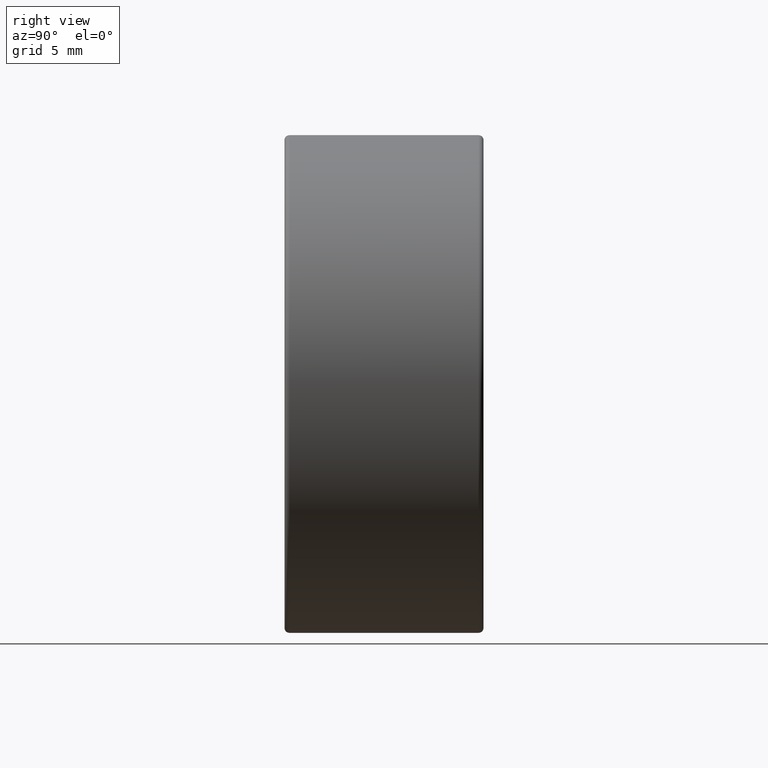
[diagram: clean part render]
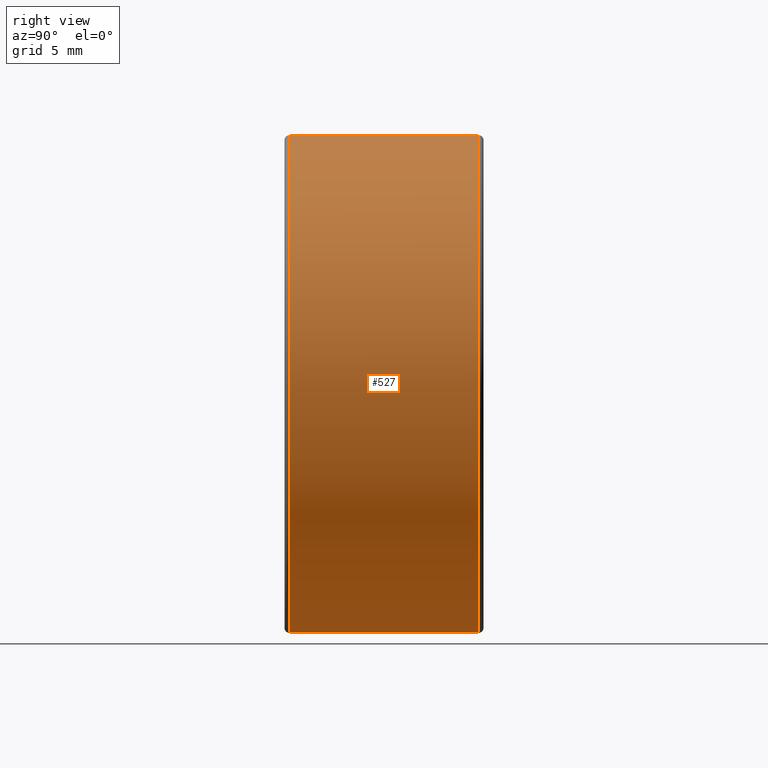
[diagram: same view with one face highlighted and labeled with its STEP entity id]
A machine part, right view. The second image highlights one B-rep face of the part: STEP entity #527.
In plain terms, the highlighted cylindrical surface (partial cylindrical patch) has radius 12.5 mm, axis along (-0, -1, -0).
Its self-contained STEP definition (entity closure, byte-faithful):
#10 = EDGE_CURVE ( 'NONE', #51, #87, #102, .T. ) ;
#16 = CARTESIAN_POINT ( 'NONE',  ( -4.682026255059964726, -6.344975976998274980, 12.50000000000000000 ) ) ;
#26 = CARTESIAN_POINT ( 'NONE',  ( -4.682026255059962949, 3.405024023001725020, 37.50000000000000711 ) ) ;
#37 = CARTESIAN_POINT ( 'NONE',  ( -4.682026255059962949, -6.344975976998274980, 37.50000000000000711 ) ) ;
#51 = VERTEX_POINT ( 'NONE', #37 ) ;
#57 = CARTESIAN_POINT ( 'NONE',  ( -4.682026255059962949, 3.155024023001725020, 12.50000000000000000 ) ) ;
#73 = DIRECTION ( 'NONE',  ( -0.0000000000000000000, -1.000000000000000000, -0.0000000000000000000 ) ) ;
#79 = DIRECTION ( 'NONE',  ( 0.0000000000000000000, 0.0000000000000000000, 1.000000000000000000 ) ) ;
#87 = VERTEX_POINT ( 'NONE', #16 ) ;
#102 = CIRCLE ( 'NONE', #554, 12.50000000000000355 ) ;
#104 = DIRECTION ( 'NONE',  ( -0.0000000000000000000, -1.000000000000000000, -0.0000000000000000000 ) ) ;
#210 = CARTESIAN_POINT ( 'NONE',  ( -4.682026255059964726, 3.155024023001725020, 25.00000000000000000 ) ) ;
#211 = DIRECTION ( 'NONE',  ( -0.0000000000000000000, -1.000000000000000000, -0.0000000000000000000 ) ) ;
#213 = EDGE_CURVE ( 'NONE', #428, #87, #279, .T. ) ;
#219 = LINE ( 'NONE', #26, #589 ) ;
#256 = CYLINDRICAL_SURFACE ( 'NONE', #547, 12.50000000000000000 ) ;
#276 = EDGE_CURVE ( 'NONE', #428, #423, #304, .T. ) ;
#279 = LINE ( 'NONE', #489, #415 ) ;
#296 = EDGE_CURVE ( 'NONE', #423, #51, #219, .T. ) ;
#304 = CIRCLE ( 'NONE', #465, 12.50000000000000355 ) ;
#307 = DIRECTION ( 'NONE',  ( 0.0000000000000000000, 0.0000000000000000000, 1.000000000000000000 ) ) ;
#365 = CARTESIAN_POINT ( 'NONE',  ( -4.682026255059964726, -6.344975976998274980, 25.00000000000000000 ) ) ;
#369 = DIRECTION ( 'NONE',  ( 0.0000000000000000000, 1.000000000000000000, 0.0000000000000000000 ) ) ;
#370 = ORIENTED_EDGE ( 'NONE', *, *, #276, .T. ) ;
#382 = ORIENTED_EDGE ( 'NONE', *, *, #10, .T. ) ;
#391 = CARTESIAN_POINT ( 'NONE',  ( -4.682026255059964726, 3.155024023001725020, 37.50000000000000711 ) ) ;
#402 = DIRECTION ( 'NONE',  ( 0.0000000000000000000, 0.0000000000000000000, -1.000000000000000000 ) ) ;
#415 = VECTOR ( 'NONE', #104, 1000.000000000000000 ) ;
#423 = VERTEX_POINT ( 'NONE', #391 ) ;
#428 = VERTEX_POINT ( 'NONE', #57 ) ;
#448 = CARTESIAN_POINT ( 'NONE',  ( -4.682026255059964726, 3.405024023001725020, 25.00000000000000000 ) ) ;
#452 = FACE_OUTER_BOUND ( 'NONE', #507, .T. ) ;
#457 = DIRECTION ( 'NONE',  ( -0.0000000000000000000, -1.000000000000000000, -0.0000000000000000000 ) ) ;
#461 = ORIENTED_EDGE ( 'NONE', *, *, #213, .F. ) ;
#465 = AXIS2_PLACEMENT_3D ( 'NONE', #210, #73, #307 ) ;
#489 = CARTESIAN_POINT ( 'NONE',  ( -4.682026255059964726, 3.405024023001725020, 12.50000000000000000 ) ) ;
#507 = EDGE_LOOP ( 'NONE', ( #370, #560, #382, #461 ) ) ;
#527 = ADVANCED_FACE ( 'NONE', ( #452 ), #256, .T. ) ;
#547 = AXIS2_PLACEMENT_3D ( 'NONE', #448, #211, #402 ) ;
#554 = AXIS2_PLACEMENT_3D ( 'NONE', #365, #369, #79 ) ;
#560 = ORIENTED_EDGE ( 'NONE', *, *, #296, .T. ) ;
#589 = VECTOR ( 'NONE', #457, 1000.000000000000000 ) ;